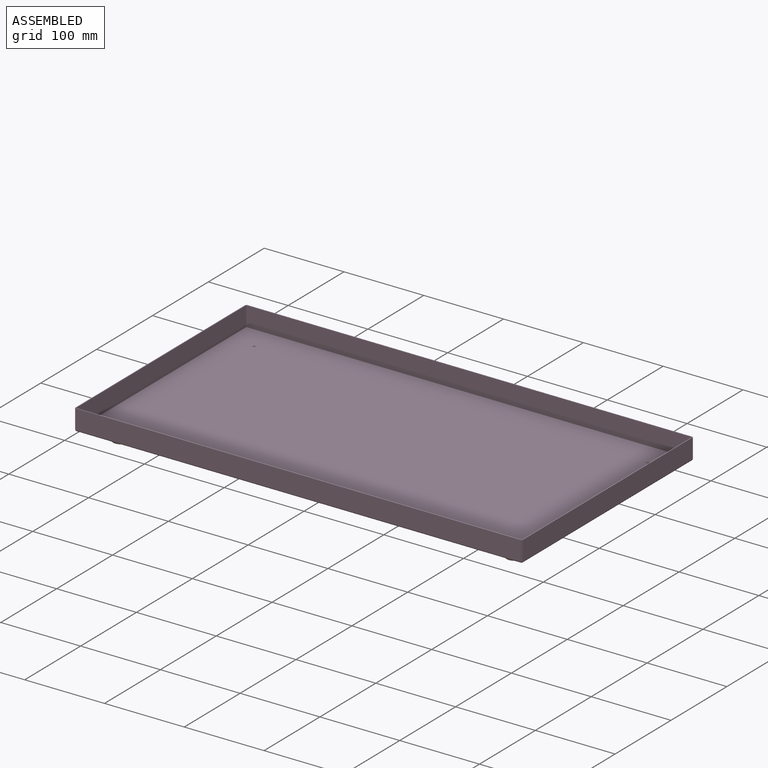
[diagram: assembled view]
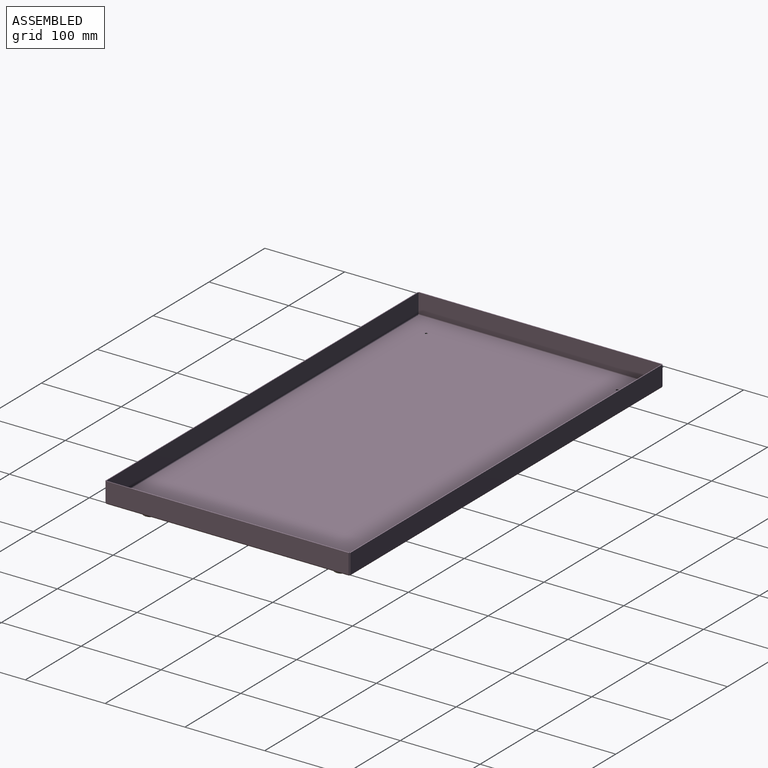
[diagram: assembled view, second angle]
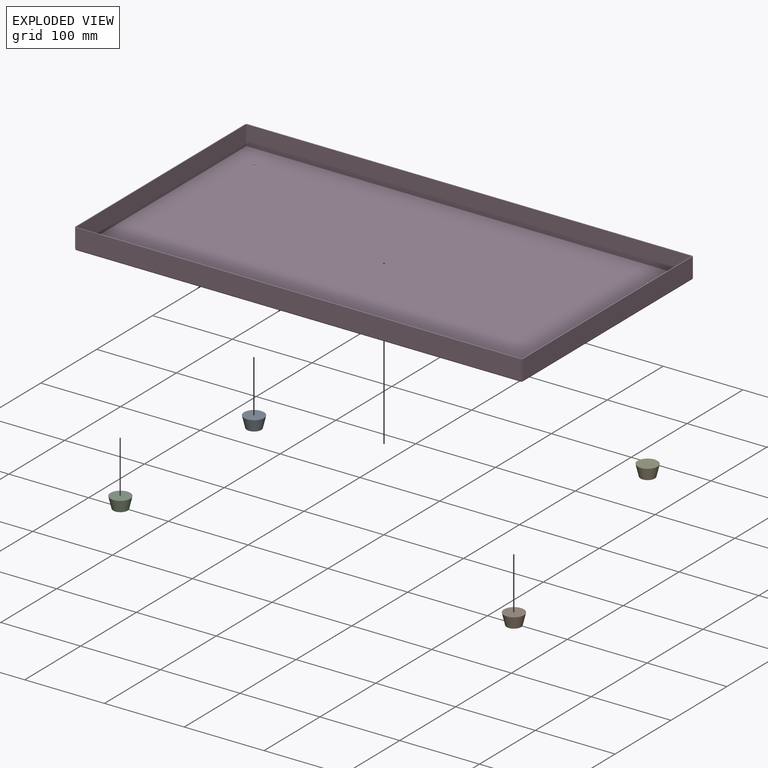
[diagram: exploded view]
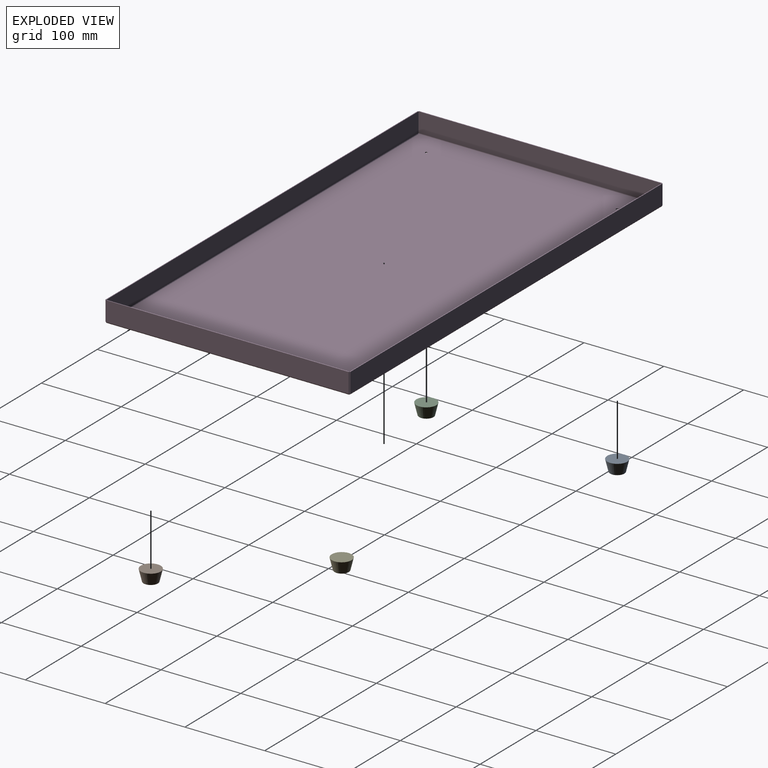
[diagram: exploded view, second angle]
ASSEMBLY  parts=5 mates=4
PART A: 4 faces, bbox 25x25x14.5 mm
  f0: plane 17.6x17.6mm, normal (0,0,-1), area 243.3mm2, adj f3
  f1: cone r=9mm half-angle=13.6deg, axis (0,0,1), area 996.2mm2, adj f2,f3
  f2: plane 25x25mm, normal (0,0,1), area 490.9mm2, adj f1
  f3: torus R=8.8mm, axis (0,0,-1), area 19mm2, adj f0,f1
PART B: same geometry as A
PART C: same geometry as A
PART D: 46 faces, bbox 560.8x306.8x26.4 mm
  f0: plane 558.75x0.99mm, normal (0,0,1), area 553.5mm2, adj f1,f2,f3,f4
  f1: plane 24.4x0.99mm, normal (1,0,0), area 24.2mm2, adj f0,f3,f4,f42
  f2: plane 24.4x0.99mm, normal (-1,0,0), area 24.2mm2, adj f0,f3,f4,f43
  f3: plane 558.75x24.4mm, normal (0,1,0), area 13633.5mm2, adj f0,f1,f2,f44
  f4: plane 558.75x24.4mm, normal (0,-1,0), area 13633.5mm2, adj f0,f1,f2,f45
  f5: cylinder r=1.52mm len=3.05mm, axis (0,0,1), area 9.5mm2, adj f9,f10
  f6: cylinder r=1.52mm len=3.05mm, axis (0,0,1), area 9.5mm2, adj f9,f10
  f7: cylinder r=1.52mm len=3.05mm, axis (0,0,1), area 9.5mm2, adj f9,f10
  f8: cylinder r=1.52mm len=3.05mm, axis (0,0,1), area 9.5mm2, adj f9,f10
  f9: plane 556.8x302.8mm, normal (0,0,-1), area 168569.9mm2, adj f5,f6,f7,f8,f11,f12,f13,f14
  f10: plane 556.8x302.8mm, normal (0,0,1), area 168569.9mm2, adj f5,f6,f7,f8,f11,f12,f13,f14
  f11: plane 0.99x0.02mm, normal (0.71,0.71,0), area 0mm2, adj f9,f10,f39,f42
  f12: plane 0.99x0.02mm, normal (0.71,-0.71,0), area 0mm2, adj f9,f10,f20,f38
  f13: plane 0.99x0.02mm, normal (-0.71,-0.71,0), area 0mm2, adj f9,f10,f21,f29
  f14: plane 0.99x0.02mm, normal (-0.71,0.71,0), area 0mm2, adj f9,f10,f30,f43
  f15: plane 558.75x0.99mm, normal (0,0,1), area 553.5mm2, adj f16,f17,f18,f19
  f16: plane 24.4x0.99mm, normal (-1,0,0), area 24.2mm2, adj f15,f18,f19,f21
  f17: plane 24.4x0.99mm, normal (1,0,0), area 24.2mm2, adj f15,f18,f19,f20
  f18: plane 558.75x24.4mm, normal (0,-1,0), area 13633.5mm2, adj f15,f16,f17,f22
  f19: plane 558.75x24.4mm, normal (0,1,0), area 13633.5mm2, adj f15,f16,f17,f23
  f20: bspline ~1.99x1.99mm, area 2.6mm2, adj f12,f17,f22,f23
  f21: bspline ~1.99x1.99mm, area 2.6mm2, adj f13,f16,f22,f23
  f22: cylinder r=1.99mm len=558.75mm, axis (1,0,0), area 1744.9mm2, adj f9,f18,f20,f21
  f23: cylinder r=1mm len=558.75mm, axis (1,0,0), area 876.6mm2, adj f10,f19,f20,f21
  f24: plane 304.75x0.99mm, normal (0,0,1), area 301.9mm2, adj f25,f26,f27,f28
  f25: plane 24.4x0.99mm, normal (0,1,0), area 24.2mm2, adj f24,f27,f28,f30
  f26: plane 24.4x0.99mm, normal (0,-1,0), area 24.2mm2, adj f24,f27,f28,f29
  f27: plane 304.75x24.4mm, normal (-1,0,0), area 7435.9mm2, adj f24,f25,f26,f31
  f28: plane 304.75x24.4mm, normal (1,0,0), area 7435.9mm2, adj f24,f25,f26,f32
  f29: bspline ~1.99x1.99mm, area 2.6mm2, adj f13,f26,f31,f32
  f30: bspline ~1.99x1.99mm, area 2.6mm2, adj f14,f25,f31,f32
  f31: cylinder r=1.99mm len=304.75mm, axis (0,-1,0), area 950.6mm2, adj f9,f27,f29,f30
  f32: cylinder r=1mm len=304.75mm, axis (0,-1,0), area 477.6mm2, adj f10,f28,f29,f30
  f33: plane 304.75x0.99mm, normal (0,0,1), area 301.9mm2, adj f34,f35,f36,f37
  f34: plane 24.4x0.99mm, normal (0,-1,0), area 24.2mm2, adj f33,f36,f37,f38
  f35: plane 24.4x0.99mm, normal (0,1,0), area 24.2mm2, adj f33,f36,f37,f39
  f36: plane 304.75x24.4mm, normal (1,0,0), area 7435.9mm2, adj f33,f34,f35,f40
  f37: plane 304.75x24.4mm, normal (-1,0,0), area 7435.9mm2, adj f33,f34,f35,f41
  f38: bspline ~1.99x1.99mm, area 2.6mm2, adj f12,f34,f40,f41
  f39: bspline ~1.99x1.99mm, area 2.6mm2, adj f11,f35,f40,f41
  f40: cylinder r=1.99mm len=304.75mm, axis (0,-1,0), area 950.6mm2, adj f9,f36,f38,f39
  f41: cylinder r=1mm len=304.75mm, axis (0,-1,0), area 477.6mm2, adj f10,f37,f38,f39
  f42: bspline ~1.99x1.99mm, area 2.6mm2, adj f1,f11,f44,f45
  f43: bspline ~1.99x1.99mm, area 2.6mm2, adj f2,f14,f44,f45
  f44: cylinder r=1.99mm len=558.75mm, axis (1,0,0), area 1744.9mm2, adj f3,f9,f42,f43
  f45: cylinder r=1mm len=558.75mm, axis (1,0,0), area 876.5mm2, adj f4,f10,f42,f43
PART E: same geometry as A
PLACE A t=(-246.23,119.44,-28.08)mm
PLACE B t=(247.07,-119.86,-28.08)mm
PLACE C t=(-246.23,-119.86,-28.08)mm
PLACE D t=(0.42,-0.21,-12.59)mm fixed
PLACE E t=(247.07,119.44,-28.08)mm
MATE fastened D.f7 <-> E.f1  axis (0,0,-1) through (247.07,119.44,-13.58)mm
MATE fastened A.f1 <-> D.f8  axis (0,0,1) through (-246.23,119.44,-13.58)mm
MATE fastened D.f5 <-> C.f1  axis (0,0,-1) through (-246.23,-119.86,-13.58)mm
MATE fastened D.f6 <-> B.f1  axis (0,0,-1) through (247.07,-119.86,-13.58)mm
